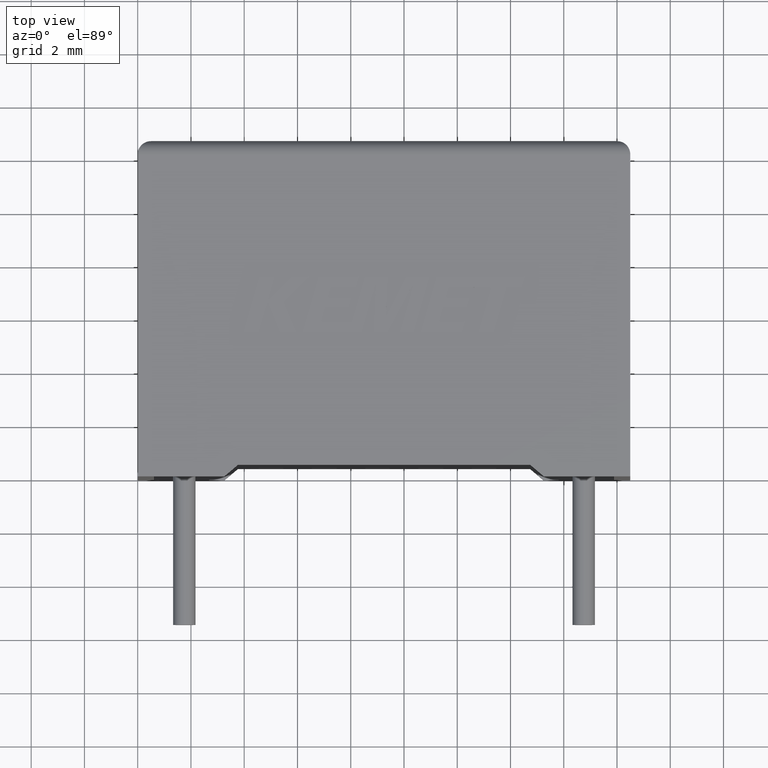
[diagram: clean part render]
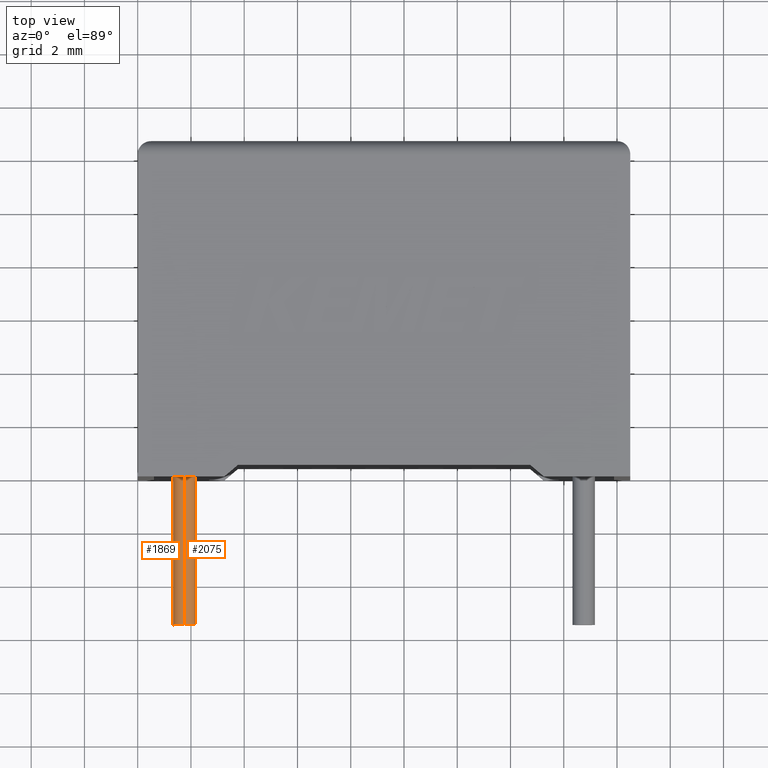
[diagram: same view with one multi-face feature highlighted, each face labeled with its STEP entity id]
A machine part, top view. The highlighted faces form ONE feature: a constant-radius fillet chain: 2 tangent blend faces with common blend radius 0.425 mm. The faces share edges in the B-rep.
Their STEP definitions:
[1] entity #1869 (Cylinder):
#29 = VERTEX_POINT ( 'NONE', #944 ) ;
#51 = DIRECTION ( 'NONE',  ( 0.000000000000000000, 0.000000000000000000, -1.000000000000000000 ) ) ;
#86 = FACE_OUTER_BOUND ( 'NONE', #135, .T. ) ;
#129 = CARTESIAN_POINT ( 'NONE',  ( 1.749999999999999778, -5.500000000000000888, 5.025000000000000355 ) ) ;
#135 = EDGE_LOOP ( 'NONE', ( #2104, #751, #1268, #2804 ) ) ;
#248 = CARTESIAN_POINT ( 'NONE',  ( 1.749999999999999778, 0.7500000000000000000, 5.025000000000000355 ) ) ;
#362 = VECTOR ( 'NONE', #2709, 1000.000000000000000 ) ;
#418 = EDGE_CURVE ( 'NONE', #2839, #1917, #2185, .T. ) ;
#679 = CARTESIAN_POINT ( 'NONE',  ( 1.749999999999999778, -5.500000000000000888, 4.599999999999999645 ) ) ;
#751 = ORIENTED_EDGE ( 'NONE', *, *, #2635, .F. ) ;
#764 = AXIS2_PLACEMENT_3D ( 'NONE', #2250, #2787, #1316 ) ;
#825 = CYLINDRICAL_SURFACE ( 'NONE', #764, 0.4250000000000000444 ) ;
#826 = LINE ( 'NONE', #129, #362 ) ;
#911 = DIRECTION ( 'NONE',  ( 0.000000000000000000, 0.000000000000000000, -1.000000000000000000 ) ) ;
#944 = CARTESIAN_POINT ( 'NONE',  ( 1.749999999999999778, -5.500000000000000888, 5.025000000000000355 ) ) ;
#1123 = AXIS2_PLACEMENT_3D ( 'NONE', #1205, #2614, #51 ) ;
#1205 = CARTESIAN_POINT ( 'NONE',  ( 1.749999999999999778, 0.7500000000000000000, 4.599999999999999645 ) ) ;
#1214 = EDGE_CURVE ( 'NONE', #2005, #1917, #2421, .T. ) ;
#1268 = ORIENTED_EDGE ( 'NONE', *, *, #2857, .T. ) ;
#1285 = CIRCLE ( 'NONE', #2182, 0.4250000000000000444 ) ;
#1316 = DIRECTION ( 'NONE',  ( 0.000000000000000000, 0.000000000000000000, 1.000000000000000000 ) ) ;
#1391 = CARTESIAN_POINT ( 'NONE',  ( 1.749999999999999778, -5.500000000000000888, 4.174999999999999822 ) ) ;
#1851 = CARTESIAN_POINT ( 'NONE',  ( 1.749999999999999778, -5.500000000000000888, 4.174999999999999822 ) ) ;
#1869 = ADVANCED_FACE ( 'NONE', ( #86 ), #825, .T. ) ;
#1917 = VERTEX_POINT ( 'NONE', #2314 ) ;
#2005 = VERTEX_POINT ( 'NONE', #248 ) ;
#2044 = DIRECTION ( 'NONE',  ( 0.000000000000000000, -1.000000000000000000, 0.000000000000000000 ) ) ;
#2104 = ORIENTED_EDGE ( 'NONE', *, *, #418, .F. ) ;
#2182 = AXIS2_PLACEMENT_3D ( 'NONE', #679, #2044, #911 ) ;
#2185 = LINE ( 'NONE', #1851, #2968 ) ;
#2250 = CARTESIAN_POINT ( 'NONE',  ( 1.749999999999999778, -5.500000000000000888, 4.599999999999999645 ) ) ;
#2314 = CARTESIAN_POINT ( 'NONE',  ( 1.749999999999999778, 0.7500000000000000000, 4.174999999999999822 ) ) ;
#2421 = CIRCLE ( 'NONE', #1123, 0.4250000000000000444 ) ;
#2517 = DIRECTION ( 'NONE',  ( -0.000000000000000000, 1.000000000000000000, -0.000000000000000000 ) ) ;
#2614 = DIRECTION ( 'NONE',  ( 0.000000000000000000, -1.000000000000000000, 0.000000000000000000 ) ) ;
#2635 = EDGE_CURVE ( 'NONE', #29, #2839, #1285, .T. ) ;
#2709 = DIRECTION ( 'NONE',  ( -0.000000000000000000, 1.000000000000000000, -0.000000000000000000 ) ) ;
#2787 = DIRECTION ( 'NONE',  ( -0.000000000000000000, 1.000000000000000000, -0.000000000000000000 ) ) ;
#2804 = ORIENTED_EDGE ( 'NONE', *, *, #1214, .T. ) ;
#2839 = VERTEX_POINT ( 'NONE', #1391 ) ;
#2857 = EDGE_CURVE ( 'NONE', #29, #2005, #826, .T. ) ;
#2968 = VECTOR ( 'NONE', #2517, 1000.000000000000000 ) ;
[2] entity #2075 (Cylinder):
#29 = VERTEX_POINT ( 'NONE', #944 ) ;
#115 = DIRECTION ( 'NONE',  ( 0.000000000000000000, 0.000000000000000000, 1.000000000000000000 ) ) ;
#120 = CIRCLE ( 'NONE', #458, 0.4250000000000000444 ) ;
#129 = CARTESIAN_POINT ( 'NONE',  ( 1.749999999999999778, -5.500000000000000888, 5.025000000000000355 ) ) ;
#248 = CARTESIAN_POINT ( 'NONE',  ( 1.749999999999999778, 0.7500000000000000000, 5.025000000000000355 ) ) ;
#313 = CYLINDRICAL_SURFACE ( 'NONE', #2673, 0.4250000000000000444 ) ;
#362 = VECTOR ( 'NONE', #2709, 1000.000000000000000 ) ;
#380 = EDGE_CURVE ( 'NONE', #1917, #2005, #2164, .T. ) ;
#418 = EDGE_CURVE ( 'NONE', #2839, #1917, #2185, .T. ) ;
#438 = CARTESIAN_POINT ( 'NONE',  ( 1.749999999999999778, -5.500000000000000888, 4.599999999999999645 ) ) ;
#458 = AXIS2_PLACEMENT_3D ( 'NONE', #438, #695, #2563 ) ;
#627 = ORIENTED_EDGE ( 'NONE', *, *, #2520, .F. ) ;
#695 = DIRECTION ( 'NONE',  ( 0.000000000000000000, -1.000000000000000000, 0.000000000000000000 ) ) ;
#826 = LINE ( 'NONE', #129, #362 ) ;
#836 = AXIS2_PLACEMENT_3D ( 'NONE', #1706, #2700, #1282 ) ;
#859 = FACE_OUTER_BOUND ( 'NONE', #1804, .T. ) ;
#944 = CARTESIAN_POINT ( 'NONE',  ( 1.749999999999999778, -5.500000000000000888, 5.025000000000000355 ) ) ;
#1282 = DIRECTION ( 'NONE',  ( 0.000000000000000000, 0.000000000000000000, -1.000000000000000000 ) ) ;
#1391 = CARTESIAN_POINT ( 'NONE',  ( 1.749999999999999778, -5.500000000000000888, 4.174999999999999822 ) ) ;
#1461 = CARTESIAN_POINT ( 'NONE',  ( 1.749999999999999778, -5.500000000000000888, 4.599999999999999645 ) ) ;
#1462 = ORIENTED_EDGE ( 'NONE', *, *, #2857, .F. ) ;
#1495 = DIRECTION ( 'NONE',  ( -0.000000000000000000, 1.000000000000000000, -0.000000000000000000 ) ) ;
#1706 = CARTESIAN_POINT ( 'NONE',  ( 1.749999999999999778, 0.7500000000000000000, 4.599999999999999645 ) ) ;
#1804 = EDGE_LOOP ( 'NONE', ( #627, #1805, #2642, #1462 ) ) ;
#1805 = ORIENTED_EDGE ( 'NONE', *, *, #418, .T. ) ;
#1851 = CARTESIAN_POINT ( 'NONE',  ( 1.749999999999999778, -5.500000000000000888, 4.174999999999999822 ) ) ;
#1917 = VERTEX_POINT ( 'NONE', #2314 ) ;
#2005 = VERTEX_POINT ( 'NONE', #248 ) ;
#2075 = ADVANCED_FACE ( 'NONE', ( #859 ), #313, .T. ) ;
#2164 = CIRCLE ( 'NONE', #836, 0.4250000000000000444 ) ;
#2185 = LINE ( 'NONE', #1851, #2968 ) ;
#2314 = CARTESIAN_POINT ( 'NONE',  ( 1.749999999999999778, 0.7500000000000000000, 4.174999999999999822 ) ) ;
#2517 = DIRECTION ( 'NONE',  ( -0.000000000000000000, 1.000000000000000000, -0.000000000000000000 ) ) ;
#2520 = EDGE_CURVE ( 'NONE', #2839, #29, #120, .T. ) ;
#2563 = DIRECTION ( 'NONE',  ( 0.000000000000000000, 0.000000000000000000, -1.000000000000000000 ) ) ;
#2642 = ORIENTED_EDGE ( 'NONE', *, *, #380, .T. ) ;
#2673 = AXIS2_PLACEMENT_3D ( 'NONE', #1461, #1495, #115 ) ;
#2700 = DIRECTION ( 'NONE',  ( 0.000000000000000000, -1.000000000000000000, 0.000000000000000000 ) ) ;
#2709 = DIRECTION ( 'NONE',  ( -0.000000000000000000, 1.000000000000000000, -0.000000000000000000 ) ) ;
#2839 = VERTEX_POINT ( 'NONE', #1391 ) ;
#2857 = EDGE_CURVE ( 'NONE', #29, #2005, #826, .T. ) ;
#2968 = VECTOR ( 'NONE', #2517, 1000.000000000000000 ) ;